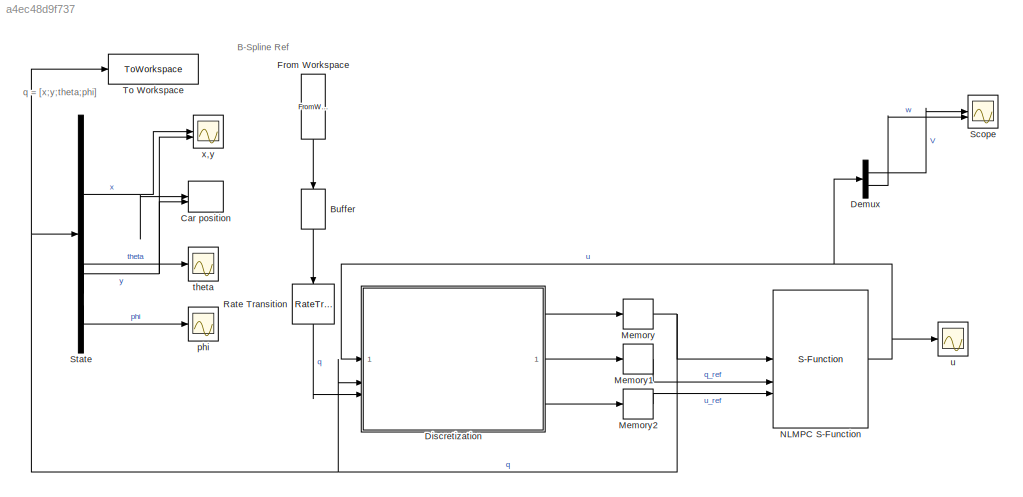
MODEL slx_a4ec48d9f737
KIND model
CONFIG AbsTol = auto
CONFIG EnableMultiTasking = off
CONFIG FixedStep = 0.1
CONFIG MaxStep = auto
CONFIG MinStep = auto
CONFIG RelTol = 1e-3
CONFIG SampleTimeConstraint = Unconstrained
CONFIG SolverName = ode1
CONFIG StartTime = 0.0
CONFIG StopTime = inf
BLOCK [Buffer] Buffer
  N = 117
  NameLocation = left
  OutputFrames = off
BLOCK [Record] Car position
  CompatibilityTag = XY
  FileSettingsInternal = {"entries":[{"content":{"excelSettings":{"content":{},"type":"Streamout.ExcelSettings"}},"type":"Streamout.FileSettingStorage","uuid":""}],"packageUris":["http:\/\/schema.mathworks.com\/mf0\/streamout_blocks\/R2020a"],"version":"1.0"}
  Layout = [1 1]
  SignalsInternal = {"entries":[{"content":{"signals":[{"content":{"blockPath":[],"dimensions":[1,1],"domain":"","lineColor":"#a2142f","plots":[1],"port":1,"sid":[""],"signalID":96600,"signalName":"x"},"type":"RecordBlkView.Signal","uuid":""},{"content":{"blockPath":[],"dimensions":[1,1],"domain":"","lineColor":"#139fff","plots":[1],"port":2,"sid":[""],"signalID":96604,"signalName":"y"},"type":"RecordBlkView.Signal",...<+156ch>
  VisualizationBindings = {"xyplotplugin":{"info":[{"series":[{"bindingParametersList":[{"parameter":"X-Axis","signalID":96600,"signalName":"x"},{"parameter":"Y-Axis","signalID":96604,"signalName":"y"}],"seriesID":31577}],"subplotID":1}]}}
BLOCK [Demux] Demux
  Outputs = 2
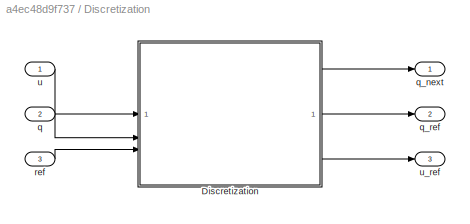
BLOCK [SubSystem] Discretization
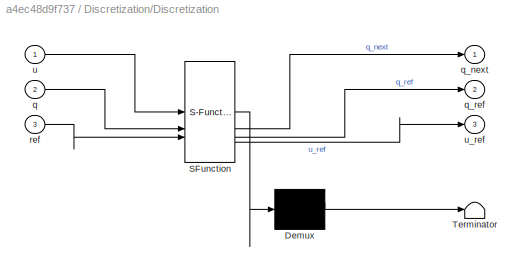
BLOCK [SubSystem] Discretization/Discretization
  ErrorFcn = Stateflow.Translate.translate
  LibrarySourceBlock = simulink/User-Defined\nFunctions/MATLAB Function
  PermitHierarchicalResolution = ExplicitOnly
  SFBlockType = MATLAB Function
  SystemSampleTime = 0.1
  TreatAsAtomicUnit = on
BLOCK [Demux] Discretization/Discretization/ Demux 
  Outputs = 1
BLOCK [S-Function] Discretization/Discretization/ SFunction 
  EnableBusSupport = on
  FunctionName = sf_sfun
  PortCounts = [3 4]
  SFcnIsStateOwnerBlock = off
  SFunctionDeploymentMode = off
  Tag = Stateflow S-Function 3
BLOCK [Terminator] Discretization/Discretization/ Terminator 
BLOCK [Inport] Discretization/Discretization/q
  Port = 2
BLOCK [Outport] Discretization/Discretization/q_next
BLOCK [Outport] Discretization/Discretization/q_ref
  Port = 2
BLOCK [Inport] Discretization/Discretization/ref
  Port = 3
BLOCK [Inport] Discretization/Discretization/u
BLOCK [Outport] Discretization/Discretization/u_ref
  Port = 3
BLOCK [Inport] Discretization/q
  Port = 2
  SampleTime = 0.1
BLOCK [Outport] Discretization/q_next
  SampleTime = 0.1
BLOCK [Outport] Discretization/q_ref
  Port = 2
  SampleTime = 0.1
BLOCK [Inport] Discretization/ref
  Port = 3
  SampleTime = 0.1
BLOCK [Inport] Discretization/u
  SampleTime = 0.1
BLOCK [Outport] Discretization/u_ref
  Port = 3
  SampleTime = 0.1
BLOCK [FromWorkspace] From Workspace
  NameLocation = left
  SampleTime = 0.1
  VariableName = ref
  ZeroCross = off
BLOCK [Memory] Memory
  InheritSampleTime = on
BLOCK [Memory] Memory1
  InheritSampleTime = on
BLOCK [Memory] Memory2
  InheritSampleTime = on
BLOCK [S-Function] NLMPC S-Function
  EnableBusSupport = off
  FunctionName = casadi_fun
  Parameters = 'mpc_fun.casadi','mpc_fun'
  SFcnIsStateOwnerBlock = off
  SFunctionDeploymentMode = off
BLOCK [RateTransition] Rate Transition
  NameLocation = left
  OutPortSampleTime = 0.1
BLOCK [Scope] Scope
  Floating = off
  NumInputPorts = 2
  ScopeSpecificationString = Simulink.scopes.TimeScopeBlockCfg('CurrentConfiguration', extmgr.ConfigurationSet(extmgr.Configuration('Core','General UI',true,'FigureColor',[1 1 1]),extmgr.Configuration('Core','Source UI',true),extmgr.Configuration('Sources','WiredSimulink',true,'DataLoggingVariableName','ScopeData1'),extmgr.Configuration('Visuals','Time Domain',true,'SerializedDisplays',{struct('MinYLimReal','-1.25','MaxYLimRe...<+1655ch>
BLOCK [Demux] State
BLOCK [ToWorkspace] To Workspace
  FixptAsFi = on
  MaxDataPoints = inf
  SampleTime = 0.1
  SaveFormat = Timeseries
  VariableName = q_nlmpc
BLOCK [Scope] phi
  Floating = off
  NumInputPorts = 1
  ScopeSpecificationString = Simulink.scopes.TimeScopeBlockCfg('CurrentConfiguration', extmgr.ConfigurationSet(extmgr.Configuration('Core','General UI',true),extmgr.Configuration('Core','Source UI',true),extmgr.Configuration('Sources','WiredSimulink',true,'DataLoggingVariableName','ScopeData2'),extmgr.Configuration('Visuals','Time Domain',true,'SerializedDisplays',{struct('MinYLimReal','-1.48583','MaxYLimReal','1.51417','YLab...<+1387ch>
BLOCK [Scope] theta
  Floating = off
  NumInputPorts = 1
  ScopeSpecificationString = Simulink.scopes.TimeScopeBlockCfg('CurrentConfiguration', extmgr.ConfigurationSet(extmgr.Configuration('Core','General UI',true,'FigureColor',[1 1 1]),extmgr.Configuration('Core','Source UI',true),extmgr.Configuration('Sources','WiredSimulink',true,'DataLoggingVariableName','ScopeData1'),extmgr.Configuration('Visuals','Time Domain',true,'PlotType','Line','SerializedDisplays',{struct('MinYLimReal',...<+1616ch>
BLOCK [Scope] u
  Floating = off
  NumInputPorts = 1
  ScopeSpecificationString = Simulink.scopes.TimeScopeBlockCfg('CurrentConfiguration', extmgr.ConfigurationSet(extmgr.Configuration('Core','General UI',true,'FigureColor',[1 1 1]),extmgr.Configuration('Core','Source UI',true),extmgr.Configuration('Sources','WiredSimulink',true,'DataLoggingVariableName','ScopeData4'),extmgr.Configuration('Visuals','Time Domain',true,'PlotType','Line','SerializedDisplays',{struct('MinYLimReal',...<+1724ch>
BLOCK [Scope] x,y
  Floating = off
  NumInputPorts = 2
  ScopeSpecificationString = Simulink.scopes.TimeScopeBlockCfg('CurrentConfiguration', extmgr.ConfigurationSet(extmgr.Configuration('Core','General UI',true),extmgr.Configuration('Core','Source UI',true),extmgr.Configuration('Sources','WiredSimulink',true,'DataLoggingVariableName','ScopeData3'),extmgr.Configuration('Visuals','Time Domain',true,'SerializedDisplays',{struct('MinYLimReal','-0.28851','MaxYLimReal','2.05776','YLab...<+1389ch>
ANNOTATION (root): B-Spline Ref
ANNOTATION (root): q = [x;y;theta;phi]
LINE Buffer:1 -> Rate Transition:1
LINE Demux:1 -> Scope:1
LINE Demux:2 -> Scope:2
LINE Discretization/Discretization:1 -> Discretization/q_next:1
LINE Discretization/Discretization:2 -> Discretization/q_ref:1
LINE Discretization/Discretization:3 -> Discretization/u_ref:1
LINE Discretization/q:1 -> Discretization/Discretization:2
LINE Discretization/ref:1 -> Discretization/Discretization:3
LINE Discretization/u:1 -> Discretization/Discretization:1
LINE Discretization:1 -> Memory:1
LINE Discretization:2 -> Memory1:1
LINE Discretization:3 -> Memory2:1
LINE From Workspace:1 -> Buffer:1
LINE Memory1:1 -> NLMPC S-Function:2
LINE Memory2:1 -> NLMPC S-Function:3
NET Memory:1 -> Discretization:2, NLMPC S-Function:1, State:1, To Workspace:1
NET NLMPC S-Function:1 -> Demux:1, Discretization:1, u:1
LINE Rate Transition:1 -> Discretization:3
NET State:1 -> Car position:1, x,y:1
NET State:2 -> Car position:2, x,y:2
LINE State:3 -> theta:1
LINE State:4 -> phi:1
note: NET lines group one-source signal fan-out (src -> all destinations, sorted); 1:1 wires keep LINE
CHART Discretization/Discretization states=1 transitions=1
  STATE_LABEL 'eML_blk_kernel()'
  STATE_LABEL 'SCRIPT:\nfunction [q_next, q_ref, u_ref] = discrete_plant(u, q, ref)\n    persistent idx q_ref_internal;\n\n    if isempty(idx)\n        idx = 1;\n    end\n\n    if isempty(q_ref_internal)\n        q_ref_internal = zeros(4,1);\n    end\n\n    % Parameters\n    Npred = 12;\n    l = 0.256;\n    L = l;\n    Delta = 0.35;\n    dt = 0.1; \n    \n    %% Next state\n    eps = 0.001;\n    x = q(1);\n    y = q(2);\n    theta = q...<+1843ch>'
CHART  states=0 transitions=0
